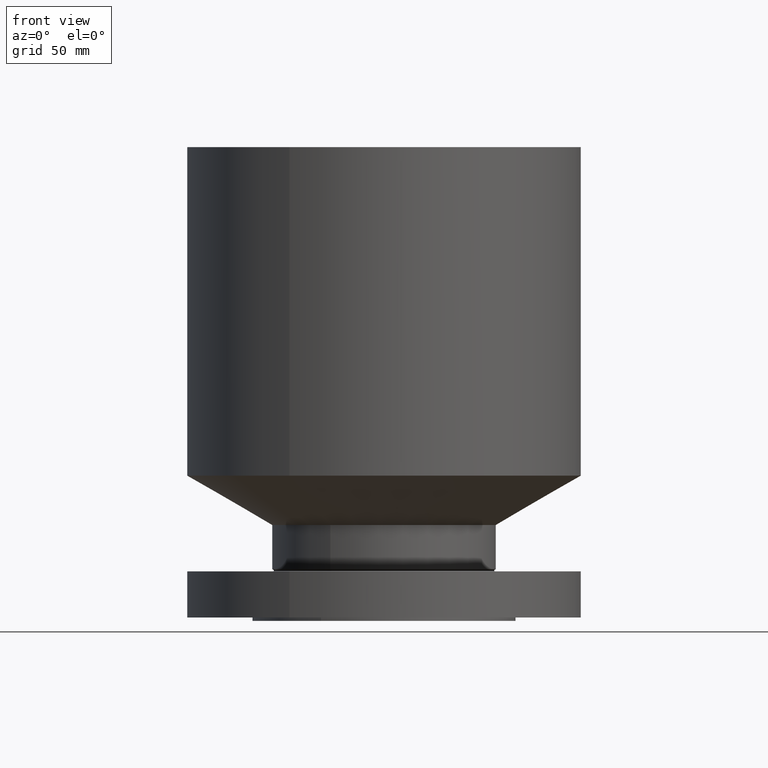
[diagram: clean part render]
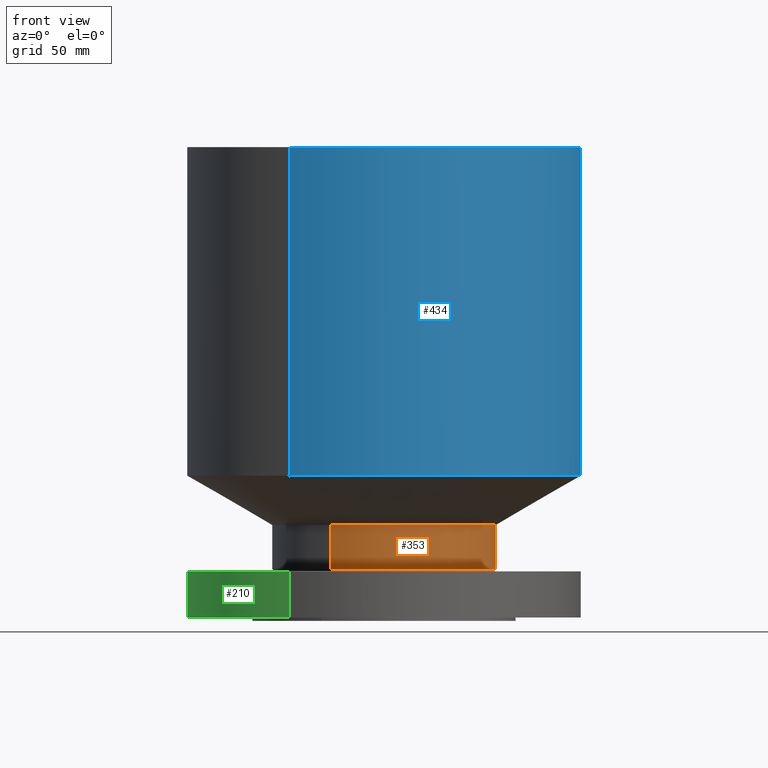
[diagram: same view with three faces highlighted in distinct colors, each labeled with its STEP entity id]
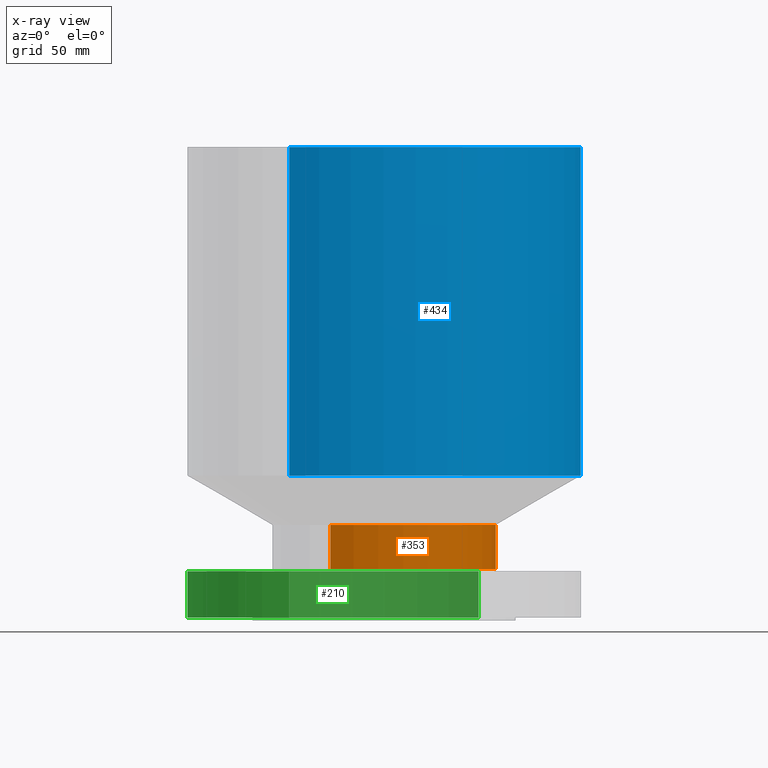
[diagram: x-ray of the same camera — body ghosted, the three highlighted faces saturated]
A machine part, front view with three faces highlighted in distinct colors.
The next image is the same camera in x-ray (body ghosted, the three faces saturated) — at least one of them is partly hidden behind the body in this view.
Their STEP definitions:

[orange] entity #353 — the highlighted cylindrical surface (partial cylindrical patch) has radius 53.975 mm, axis along (0, 0, -1).
#294=AXIS2_PLACEMENT_3D('Circle Axis2P3D',#292,#293,$) ;
#326=AXIS2_PLACEMENT_3D('Cylinder Axis2P3D',#323,#324,#325) ;
#337=AXIS2_PLACEMENT_3D('Circle Axis2P3D',#335,#336,$) ;
#289=CARTESIAN_POINT('Vertex',(1.01877926954,1.86486294402,0.918480762117)) ;
#292=CARTESIAN_POINT('Axis2P3D Location',(0.,0.,0.918480762117)) ;
#296=CARTESIAN_POINT('Vertex',(-1.01877926954,-1.86486294402,0.918480762117)) ;
#323=CARTESIAN_POINT('Axis2P3D Location',(0.,0.,4.43750000002)) ;
#328=CARTESIAN_POINT('Line Origine',(1.01877926954,1.86486294402,1.33799038106)) ;
#332=CARTESIAN_POINT('Vertex',(1.01877926954,1.86486294402,1.75750000001)) ;
#335=CARTESIAN_POINT('Axis2P3D Location',(0.,0.,1.75750000001)) ;
#339=CARTESIAN_POINT('Vertex',(-1.01877926954,-1.86486294402,1.75750000001)) ;
#342=CARTESIAN_POINT('Line Origine',(-1.01877926954,-1.86486294402,1.33799038106)) ;
#293=DIRECTION('Axis2P3D Direction',(-0.,0.,0.0393700787402)) ;
#324=DIRECTION('Axis2P3D Direction',(0.,0.,-0.0393700787402)) ;
#325=DIRECTION('Axis2P3D XDirection',(-0.0188750212049,-0.0345504945626,0.)) ;
#329=DIRECTION('Vector Direction',(0.,0.,-0.0393700787402)) ;
#336=DIRECTION('Axis2P3D Direction',(0.,0.,-0.0393700787402)) ;
#343=DIRECTION('Vector Direction',(0.,0.,-0.0393700787402)) ;
#330=VECTOR('Line Direction',#329,0.0393700787402) ;
#344=VECTOR('Line Direction',#343,0.0393700787402) ;
#348=ORIENTED_EDGE('',*,*,#298,.F.) ;
#349=ORIENTED_EDGE('',*,*,#334,.T.) ;
#350=ORIENTED_EDGE('',*,*,#341,.T.) ;
#351=ORIENTED_EDGE('',*,*,#346,.F.) ;
#353=ADVANCED_FACE('PartBody',(#352),#327,.T.) ;
#295=CIRCLE('generated circle',#294,2.12500000001) ;
#338=CIRCLE('generated circle',#337,2.12500000001) ;
#327=CYLINDRICAL_SURFACE('generated cylinder',#326,2.12500000001) ;
#298=EDGE_CURVE('',#290,#297,#295,.F.) ;
#334=EDGE_CURVE('',#290,#333,#331,.F.) ;
#341=EDGE_CURVE('',#333,#340,#338,.T.) ;
#346=EDGE_CURVE('',#297,#340,#345,.F.) ;
#347=EDGE_LOOP('',(#348,#349,#350,#351)) ;
#352=FACE_OUTER_BOUND('',#347,.T.) ;
#331=LINE('Line',#328,#330) ;
#345=LINE('Line',#342,#344) ;
#290=VERTEX_POINT('',#289) ;
#297=VERTEX_POINT('',#296) ;
#333=VERTEX_POINT('',#332) ;
#340=VERTEX_POINT('',#339) ;

[blue] entity #434 — the highlighted cylindrical surface (partial cylindrical patch) has radius 95.25 mm, axis along (0, 0, -1).
#183=AXIS2_PLACEMENT_3D('Cylinder Axis2P3D',#180,#181,#182) ;
#380=AXIS2_PLACEMENT_3D('Circle Axis2P3D',#378,#379,$) ;
#418=AXIS2_PLACEMENT_3D('Circle Axis2P3D',#416,#417,$) ;
#180=CARTESIAN_POINT('Axis2P3D Location',(0.,0.,4.43750000002)) ;
#375=CARTESIAN_POINT('Vertex',(1.79784576977,3.2909346071,2.69569418744)) ;
#378=CARTESIAN_POINT('Axis2P3D Location',(0.,0.,2.69569418744)) ;
#382=CARTESIAN_POINT('Vertex',(-1.79784576977,-3.2909346071,2.69569418744)) ;
#409=CARTESIAN_POINT('Line Origine',(1.79784576977,3.2909346071,5.81659709374)) ;
#413=CARTESIAN_POINT('Vertex',(1.79784576977,3.2909346071,8.93750000004)) ;
#416=CARTESIAN_POINT('Axis2P3D Location',(0.,0.,8.93750000004)) ;
#420=CARTESIAN_POINT('Vertex',(-1.79784576977,-3.2909346071,8.93750000004)) ;
#423=CARTESIAN_POINT('Line Origine',(-1.79784576977,-3.2909346071,5.81659709374)) ;
#181=DIRECTION('Axis2P3D Direction',(0.,0.,-0.0393700787402)) ;
#182=DIRECTION('Axis2P3D XDirection',(-0.0188750212049,-0.0345504945626,0.)) ;
#379=DIRECTION('Axis2P3D Direction',(-0.,0.,0.0393700787402)) ;
#410=DIRECTION('Vector Direction',(0.,0.,-0.0393700787402)) ;
#417=DIRECTION('Axis2P3D Direction',(0.,0.,-0.0393700787402)) ;
#424=DIRECTION('Vector Direction',(0.,0.,-0.0393700787402)) ;
#411=VECTOR('Line Direction',#410,0.0393700787402) ;
#425=VECTOR('Line Direction',#424,0.0393700787402) ;
#429=ORIENTED_EDGE('',*,*,#384,.F.) ;
#430=ORIENTED_EDGE('',*,*,#415,.T.) ;
#431=ORIENTED_EDGE('',*,*,#422,.T.) ;
#432=ORIENTED_EDGE('',*,*,#427,.F.) ;
#434=ADVANCED_FACE('PartBody',(#433),#184,.T.) ;
#381=CIRCLE('generated circle',#380,3.75000000002) ;
#419=CIRCLE('generated circle',#418,3.75000000002) ;
#184=CYLINDRICAL_SURFACE('generated cylinder',#183,3.75000000002) ;
#384=EDGE_CURVE('',#376,#383,#381,.F.) ;
#415=EDGE_CURVE('',#376,#414,#412,.F.) ;
#422=EDGE_CURVE('',#414,#421,#419,.T.) ;
#427=EDGE_CURVE('',#383,#421,#426,.F.) ;
#428=EDGE_LOOP('',(#429,#430,#431,#432)) ;
#433=FACE_OUTER_BOUND('',#428,.T.) ;
#412=LINE('Line',#409,#411) ;
#426=LINE('Line',#423,#425) ;
#376=VERTEX_POINT('',#375) ;
#383=VERTEX_POINT('',#382) ;
#414=VERTEX_POINT('',#413) ;
#421=VERTEX_POINT('',#420) ;

[green] entity #210 — the highlighted cylindrical surface (partial cylindrical patch) has radius 95.25 mm, axis along (0, 0, -1).
#82=AXIS2_PLACEMENT_3D('Circle Axis2P3D',#80,#81,$) ;
#183=AXIS2_PLACEMENT_3D('Cylinder Axis2P3D',#180,#181,#182) ;
#194=AXIS2_PLACEMENT_3D('Circle Axis2P3D',#192,#193,$) ;
#80=CARTESIAN_POINT('Axis2P3D Location',(0.,0.,0.)) ;
#84=CARTESIAN_POINT('Vertex',(-1.79784576977,-3.2909346071,1.1189649382E-015)) ;
#86=CARTESIAN_POINT('Vertex',(1.79784576977,3.2909346071,1.1189649382E-015)) ;
#180=CARTESIAN_POINT('Axis2P3D Location',(0.,0.,4.43750000002)) ;
#185=CARTESIAN_POINT('Line Origine',(-1.79784576977,-3.2909346071,5.81659709374)) ;
#189=CARTESIAN_POINT('Vertex',(-1.79784576977,-3.2909346071,0.877500000004)) ;
#192=CARTESIAN_POINT('Axis2P3D Location',(0.,0.,0.877500000004)) ;
#196=CARTESIAN_POINT('Vertex',(1.79784576977,3.2909346071,0.877500000004)) ;
#199=CARTESIAN_POINT('Line Origine',(1.79784576977,3.2909346071,5.81659709374)) ;
#81=DIRECTION('Axis2P3D Direction',(0.,0.,-0.0393700787402)) ;
#181=DIRECTION('Axis2P3D Direction',(0.,0.,-0.0393700787402)) ;
#182=DIRECTION('Axis2P3D XDirection',(-0.0188750212049,-0.0345504945626,0.)) ;
#186=DIRECTION('Vector Direction',(0.,0.,-0.0393700787402)) ;
#193=DIRECTION('Axis2P3D Direction',(0.,0.,-0.0393700787402)) ;
#200=DIRECTION('Vector Direction',(0.,0.,-0.0393700787402)) ;
#187=VECTOR('Line Direction',#186,0.0393700787402) ;
#201=VECTOR('Line Direction',#200,0.0393700787402) ;
#205=ORIENTED_EDGE('',*,*,#88,.F.) ;
#206=ORIENTED_EDGE('',*,*,#191,.T.) ;
#207=ORIENTED_EDGE('',*,*,#198,.T.) ;
#208=ORIENTED_EDGE('',*,*,#203,.F.) ;
#210=ADVANCED_FACE('PartBody',(#209),#184,.T.) ;
#83=CIRCLE('generated circle',#82,3.75000000002) ;
#195=CIRCLE('generated circle',#194,3.75000000002) ;
#184=CYLINDRICAL_SURFACE('generated cylinder',#183,3.75000000002) ;
#88=EDGE_CURVE('',#85,#87,#83,.T.) ;
#191=EDGE_CURVE('',#85,#190,#188,.F.) ;
#198=EDGE_CURVE('',#190,#197,#195,.T.) ;
#203=EDGE_CURVE('',#87,#197,#202,.F.) ;
#204=EDGE_LOOP('',(#205,#206,#207,#208)) ;
#209=FACE_OUTER_BOUND('',#204,.T.) ;
#188=LINE('Line',#185,#187) ;
#202=LINE('Line',#199,#201) ;
#85=VERTEX_POINT('',#84) ;
#87=VERTEX_POINT('',#86) ;
#190=VERTEX_POINT('',#189) ;
#197=VERTEX_POINT('',#196) ;